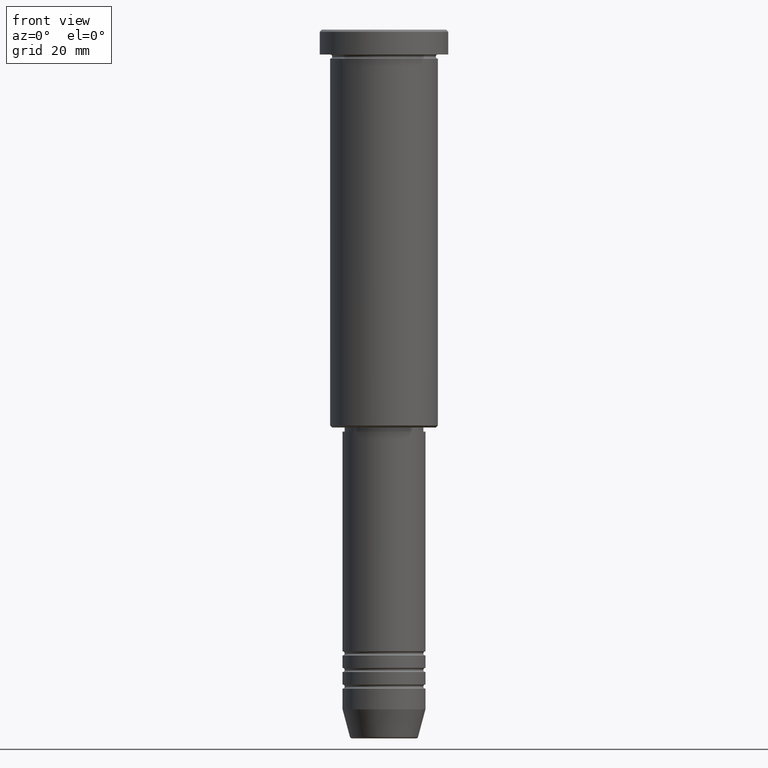
[diagram: clean part render]
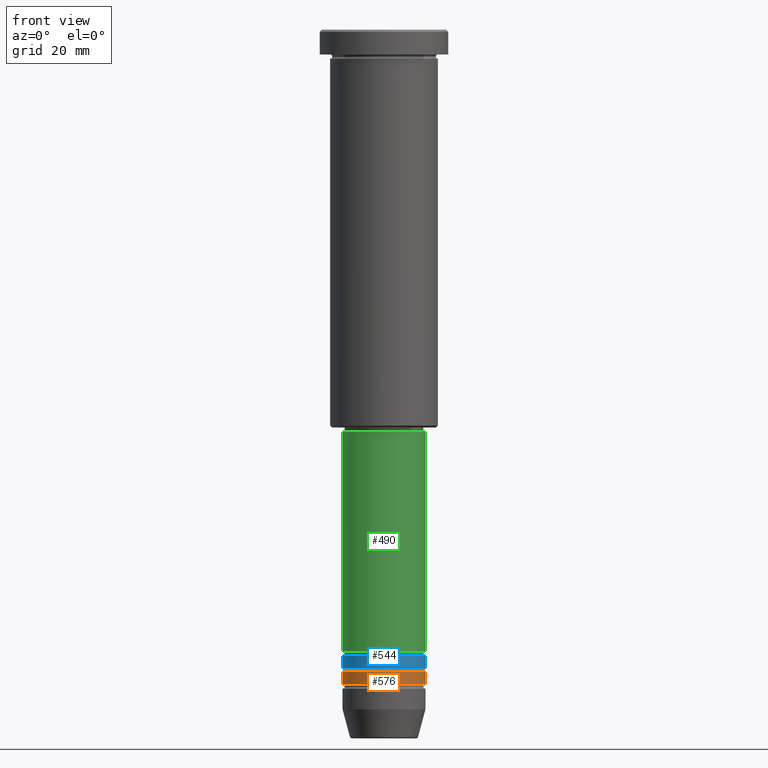
[diagram: same view with three faces highlighted in distinct colors, each labeled with its STEP entity id]
A machine part, front view with three faces highlighted in distinct colors.
Their STEP definitions:

[orange] entity #576 — the highlighted cylindrical surface (partial cylindrical patch) has radius 10 mm, axis along (-0, -0, 1).
#2 = CARTESIAN_POINT ( 'NONE',  ( 10.00000000000000178, 0.000000000000000000, -157.9999999999998579 ) ) ;
#49 = ORIENTED_EDGE ( 'NONE', *, *, #321, .T. ) ;
#81 = CARTESIAN_POINT ( 'NONE',  ( 10.00000000000000178, 0.000000000000000000, 0.000000000000000000 ) ) ;
#125 = EDGE_CURVE ( 'NONE', #558, #586, #308, .T. ) ;
#133 = AXIS2_PLACEMENT_3D ( 'NONE', #173, #705, #531 ) ;
#173 = CARTESIAN_POINT ( 'NONE',  ( 0.000000000000000000, 0.000000000000000000, -154.9999999999998579 ) ) ;
#193 = CIRCLE ( 'NONE', #602, 10.00000000000000178 ) ;
#220 = CARTESIAN_POINT ( 'NONE',  ( -10.00000000000000000, 1.224646799147353256E-15, -154.9999999999998579 ) ) ;
#256 = DIRECTION ( 'NONE',  ( -0.000000000000000000, -0.000000000000000000, 1.000000000000000000 ) ) ;
#271 = VECTOR ( 'NONE', #256, 1000.000000000000000 ) ;
#308 = CIRCLE ( 'NONE', #133, 10.00000000000000000 ) ;
#316 = CARTESIAN_POINT ( 'NONE',  ( -10.00000000000000178, 1.224646799147353454E-15, -157.9999999999998579 ) ) ;
#321 = EDGE_CURVE ( 'NONE', #904, #586, #995, .T. ) ;
#349 = AXIS2_PLACEMENT_3D ( 'NONE', #1036, #956, #676 ) ;
#381 = DIRECTION ( 'NONE',  ( -0.000000000000000000, -0.000000000000000000, 1.000000000000000000 ) ) ;
#388 = CARTESIAN_POINT ( 'NONE',  ( 0.000000000000000000, 0.000000000000000000, -157.9999999999998579 ) ) ;
#448 = VECTOR ( 'NONE', #823, 1000.000000000000000 ) ;
#487 = DIRECTION ( 'NONE',  ( 1.000000000000000000, 0.000000000000000000, 0.000000000000000000 ) ) ;
#508 = FACE_OUTER_BOUND ( 'NONE', #740, .T. ) ;
#512 = ORIENTED_EDGE ( 'NONE', *, *, #125, .F. ) ;
#531 = DIRECTION ( 'NONE',  ( 1.000000000000000000, 0.000000000000000000, 0.000000000000000000 ) ) ;
#558 = VERTEX_POINT ( 'NONE', #220 ) ;
#572 = LINE ( 'NONE', #668, #448 ) ;
#576 = ADVANCED_FACE ( 'NONE', ( #508 ), #1133, .T. ) ;
#586 = VERTEX_POINT ( 'NONE', #975 ) ;
#602 = AXIS2_PLACEMENT_3D ( 'NONE', #388, #381, #487 ) ;
#668 = CARTESIAN_POINT ( 'NONE',  ( -10.00000000000000178, 1.224646799147353454E-15, 0.000000000000000000 ) ) ;
#676 = DIRECTION ( 'NONE',  ( 1.000000000000000000, 0.000000000000000000, 0.000000000000000000 ) ) ;
#705 = DIRECTION ( 'NONE',  ( -0.000000000000000000, -0.000000000000000000, 1.000000000000000000 ) ) ;
#740 = EDGE_LOOP ( 'NONE', ( #899, #920, #49, #512 ) ) ;
#823 = DIRECTION ( 'NONE',  ( -0.000000000000000000, -0.000000000000000000, 1.000000000000000000 ) ) ;
#875 = EDGE_CURVE ( 'NONE', #972, #904, #193, .T. ) ;
#899 = ORIENTED_EDGE ( 'NONE', *, *, #947, .F. ) ;
#904 = VERTEX_POINT ( 'NONE', #2 ) ;
#920 = ORIENTED_EDGE ( 'NONE', *, *, #875, .T. ) ;
#947 = EDGE_CURVE ( 'NONE', #972, #558, #572, .T. ) ;
#956 = DIRECTION ( 'NONE',  ( -0.000000000000000000, -0.000000000000000000, 1.000000000000000000 ) ) ;
#972 = VERTEX_POINT ( 'NONE', #316 ) ;
#975 = CARTESIAN_POINT ( 'NONE',  ( 10.00000000000000000, 0.000000000000000000, -154.9999999999998579 ) ) ;
#995 = LINE ( 'NONE', #81, #271 ) ;
#1036 = CARTESIAN_POINT ( 'NONE',  ( 0.000000000000000000, 0.000000000000000000, 0.000000000000000000 ) ) ;
#1133 = CYLINDRICAL_SURFACE ( 'NONE', #349, 10.00000000000000178 ) ;

[blue] entity #544 — the highlighted cylindrical surface (partial cylindrical patch) has radius 10 mm, axis along (-0, -0, 1).
#12 = CIRCLE ( 'NONE', #353, 10.00000000000000178 ) ;
#25 = LINE ( 'NONE', #691, #95 ) ;
#86 = EDGE_CURVE ( 'NONE', #1176, #1050, #639, .T. ) ;
#91 = AXIS2_PLACEMENT_3D ( 'NONE', #258, #992, #711 ) ;
#93 = VERTEX_POINT ( 'NONE', #338 ) ;
#95 = VECTOR ( 'NONE', #592, 1000.000000000000000 ) ;
#127 = CARTESIAN_POINT ( 'NONE',  ( 10.00000000000000000, 0.000000000000000000, -150.9999999999998579 ) ) ;
#139 = CYLINDRICAL_SURFACE ( 'NONE', #327, 10.00000000000000178 ) ;
#236 = CARTESIAN_POINT ( 'NONE',  ( 0.000000000000000000, 0.000000000000000000, 0.000000000000000000 ) ) ;
#258 = CARTESIAN_POINT ( 'NONE',  ( 0.000000000000000000, 0.000000000000000000, -150.9999999999998579 ) ) ;
#286 = EDGE_CURVE ( 'NONE', #574, #93, #12, .T. ) ;
#320 = EDGE_CURVE ( 'NONE', #574, #1176, #802, .T. ) ;
#327 = AXIS2_PLACEMENT_3D ( 'NONE', #236, #1061, #1040 ) ;
#338 = CARTESIAN_POINT ( 'NONE',  ( 10.00000000000000178, 0.000000000000000000, -153.9999999999998863 ) ) ;
#353 = AXIS2_PLACEMENT_3D ( 'NONE', #553, #730, #825 ) ;
#383 = FACE_OUTER_BOUND ( 'NONE', #538, .T. ) ;
#417 = ORIENTED_EDGE ( 'NONE', *, *, #1042, .T. ) ;
#538 = EDGE_LOOP ( 'NONE', ( #680, #731, #417, #936 ) ) ;
#544 = ADVANCED_FACE ( 'NONE', ( #383 ), #139, .T. ) ;
#553 = CARTESIAN_POINT ( 'NONE',  ( 0.000000000000000000, 0.000000000000000000, -153.9999999999998863 ) ) ;
#574 = VERTEX_POINT ( 'NONE', #703 ) ;
#592 = DIRECTION ( 'NONE',  ( -0.000000000000000000, -0.000000000000000000, 1.000000000000000000 ) ) ;
#639 = CIRCLE ( 'NONE', #91, 10.00000000000000000 ) ;
#680 = ORIENTED_EDGE ( 'NONE', *, *, #320, .F. ) ;
#691 = CARTESIAN_POINT ( 'NONE',  ( 10.00000000000000178, 0.000000000000000000, 0.000000000000000000 ) ) ;
#703 = CARTESIAN_POINT ( 'NONE',  ( -10.00000000000000178, 1.224646799147353454E-15, -153.9999999999998863 ) ) ;
#711 = DIRECTION ( 'NONE',  ( 1.000000000000000000, 0.000000000000000000, 0.000000000000000000 ) ) ;
#730 = DIRECTION ( 'NONE',  ( -0.000000000000000000, -0.000000000000000000, 1.000000000000000000 ) ) ;
#731 = ORIENTED_EDGE ( 'NONE', *, *, #286, .T. ) ;
#802 = LINE ( 'NONE', #1079, #983 ) ;
#825 = DIRECTION ( 'NONE',  ( 1.000000000000000000, 0.000000000000000000, 0.000000000000000000 ) ) ;
#936 = ORIENTED_EDGE ( 'NONE', *, *, #86, .F. ) ;
#983 = VECTOR ( 'NONE', #984, 1000.000000000000000 ) ;
#984 = DIRECTION ( 'NONE',  ( -0.000000000000000000, -0.000000000000000000, 1.000000000000000000 ) ) ;
#992 = DIRECTION ( 'NONE',  ( -0.000000000000000000, -0.000000000000000000, 1.000000000000000000 ) ) ;
#1040 = DIRECTION ( 'NONE',  ( 1.000000000000000000, 0.000000000000000000, 0.000000000000000000 ) ) ;
#1042 = EDGE_CURVE ( 'NONE', #93, #1050, #25, .T. ) ;
#1050 = VERTEX_POINT ( 'NONE', #127 ) ;
#1061 = DIRECTION ( 'NONE',  ( -0.000000000000000000, -0.000000000000000000, 1.000000000000000000 ) ) ;
#1079 = CARTESIAN_POINT ( 'NONE',  ( -10.00000000000000178, 1.224646799147353454E-15, 0.000000000000000000 ) ) ;
#1176 = VERTEX_POINT ( 'NONE', #1183 ) ;
#1183 = CARTESIAN_POINT ( 'NONE',  ( -10.00000000000000000, 1.224646799147353256E-15, -150.9999999999998579 ) ) ;

[green] entity #490 — the highlighted cylindrical surface (partial cylindrical patch) has radius 10 mm, axis along (-0, -0, 1).
#15 = FACE_OUTER_BOUND ( 'NONE', #621, .T. ) ;
#29 = DIRECTION ( 'NONE',  ( 1.000000000000000000, 0.000000000000000000, 0.000000000000000000 ) ) ;
#50 = DIRECTION ( 'NONE',  ( 1.000000000000000000, 0.000000000000000000, 0.000000000000000000 ) ) ;
#84 = DIRECTION ( 'NONE',  ( -0.000000000000000000, -0.000000000000000000, 1.000000000000000000 ) ) ;
#96 = CARTESIAN_POINT ( 'NONE',  ( -9.999999999999998224, 1.224646799147353256E-15, -96.99999999999997158 ) ) ;
#135 = ORIENTED_EDGE ( 'NONE', *, *, #686, .F. ) ;
#137 = CARTESIAN_POINT ( 'NONE',  ( 0.000000000000000000, 0.000000000000000000, -96.99999999999997158 ) ) ;
#213 = DIRECTION ( 'NONE',  ( -0.000000000000000000, -0.000000000000000000, 1.000000000000000000 ) ) ;
#219 = ORIENTED_EDGE ( 'NONE', *, *, #1081, .F. ) ;
#272 = CARTESIAN_POINT ( 'NONE',  ( -10.00000000000000000, 1.224646799147353256E-15, 0.000000000000000000 ) ) ;
#287 = ORIENTED_EDGE ( 'NONE', *, *, #1113, .T. ) ;
#298 = CARTESIAN_POINT ( 'NONE',  ( 10.00000000000000178, 0.000000000000000000, -149.9999999999998579 ) ) ;
#318 = LINE ( 'NONE', #272, #908 ) ;
#387 = VECTOR ( 'NONE', #84, 1000.000000000000000 ) ;
#422 = DIRECTION ( 'NONE',  ( -0.000000000000000000, -0.000000000000000000, 1.000000000000000000 ) ) ;
#490 = ADVANCED_FACE ( 'NONE', ( #15 ), #670, .T. ) ;
#559 = CARTESIAN_POINT ( 'NONE',  ( -10.00000000000000178, 1.224646799147353454E-15, -149.9999999999998579 ) ) ;
#621 = EDGE_LOOP ( 'NONE', ( #135, #287, #1094, #219 ) ) ;
#670 = CYLINDRICAL_SURFACE ( 'NONE', #1031, 10.00000000000000000 ) ;
#686 = EDGE_CURVE ( 'NONE', #955, #964, #318, .T. ) ;
#709 = LINE ( 'NONE', #913, #387 ) ;
#779 = CARTESIAN_POINT ( 'NONE',  ( 0.000000000000000000, 0.000000000000000000, -149.9999999999998579 ) ) ;
#837 = EDGE_CURVE ( 'NONE', #944, #893, #709, .T. ) ;
#865 = AXIS2_PLACEMENT_3D ( 'NONE', #137, #213, #50 ) ;
#893 = VERTEX_POINT ( 'NONE', #1026 ) ;
#900 = DIRECTION ( 'NONE',  ( -0.000000000000000000, -0.000000000000000000, 1.000000000000000000 ) ) ;
#908 = VECTOR ( 'NONE', #900, 1000.000000000000000 ) ;
#913 = CARTESIAN_POINT ( 'NONE',  ( 10.00000000000000000, 0.000000000000000000, 0.000000000000000000 ) ) ;
#942 = AXIS2_PLACEMENT_3D ( 'NONE', #779, #422, #29 ) ;
#944 = VERTEX_POINT ( 'NONE', #298 ) ;
#955 = VERTEX_POINT ( 'NONE', #559 ) ;
#964 = VERTEX_POINT ( 'NONE', #96 ) ;
#1026 = CARTESIAN_POINT ( 'NONE',  ( 9.999999999999998224, 0.000000000000000000, -96.99999999999997158 ) ) ;
#1030 = DIRECTION ( 'NONE',  ( -0.000000000000000000, -0.000000000000000000, 1.000000000000000000 ) ) ;
#1031 = AXIS2_PLACEMENT_3D ( 'NONE', #1111, #1030, #1100 ) ;
#1032 = CIRCLE ( 'NONE', #865, 9.999999999999998224 ) ;
#1081 = EDGE_CURVE ( 'NONE', #964, #893, #1032, .T. ) ;
#1094 = ORIENTED_EDGE ( 'NONE', *, *, #837, .T. ) ;
#1100 = DIRECTION ( 'NONE',  ( 1.000000000000000000, 0.000000000000000000, 0.000000000000000000 ) ) ;
#1111 = CARTESIAN_POINT ( 'NONE',  ( 0.000000000000000000, 0.000000000000000000, 0.000000000000000000 ) ) ;
#1113 = EDGE_CURVE ( 'NONE', #955, #944, #1181, .T. ) ;
#1181 = CIRCLE ( 'NONE', #942, 10.00000000000000178 ) ;